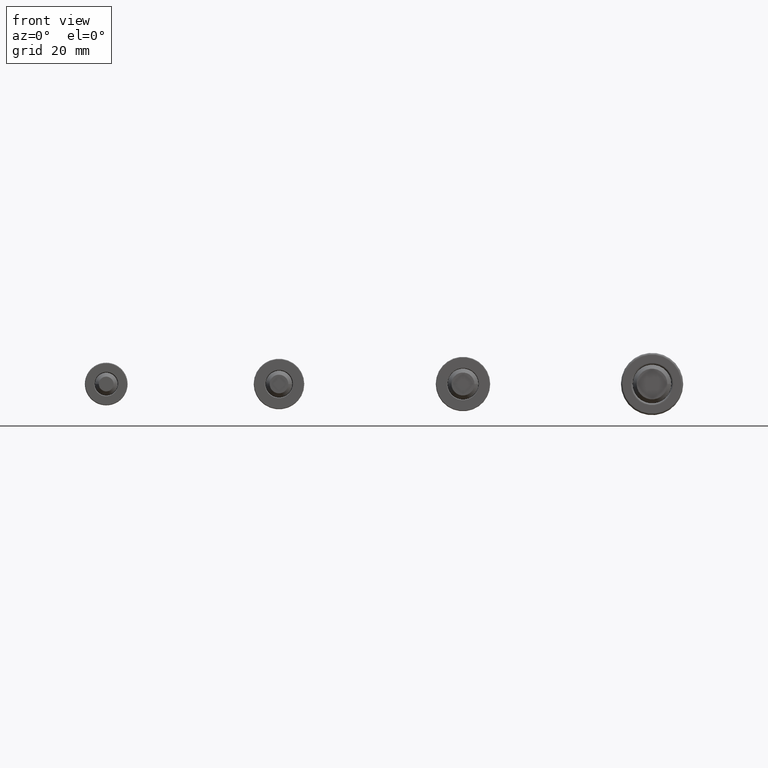
[diagram: clean part render]
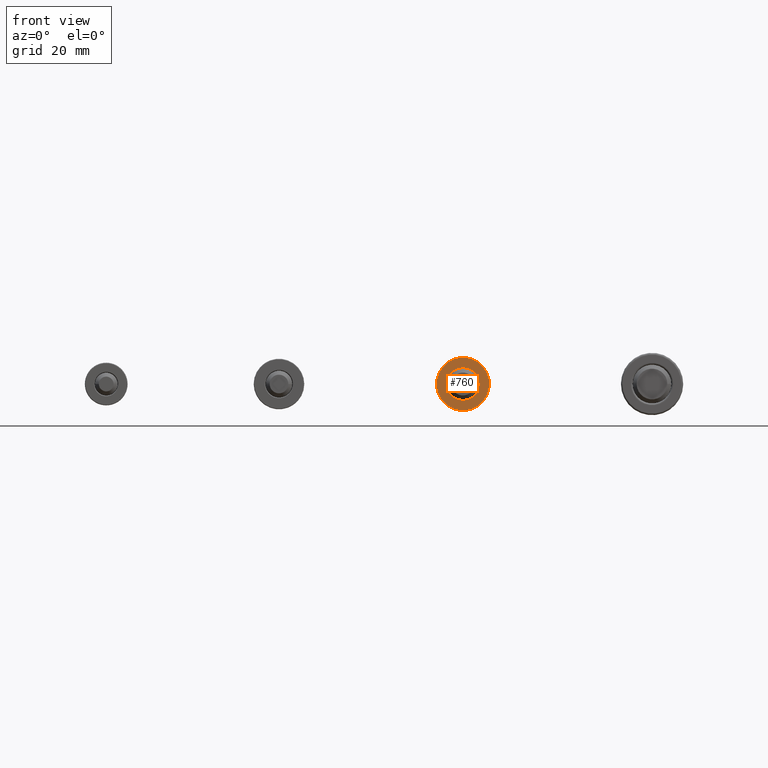
[diagram: same view with one face highlighted and labeled with its STEP entity id]
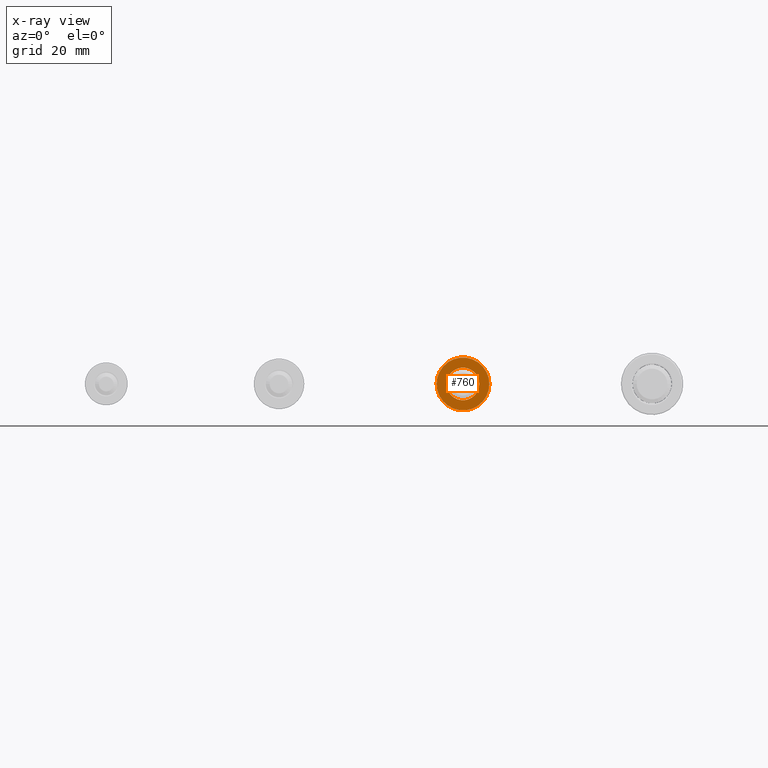
[diagram: x-ray of the same camera — body ghosted, the highlighted face saturated]
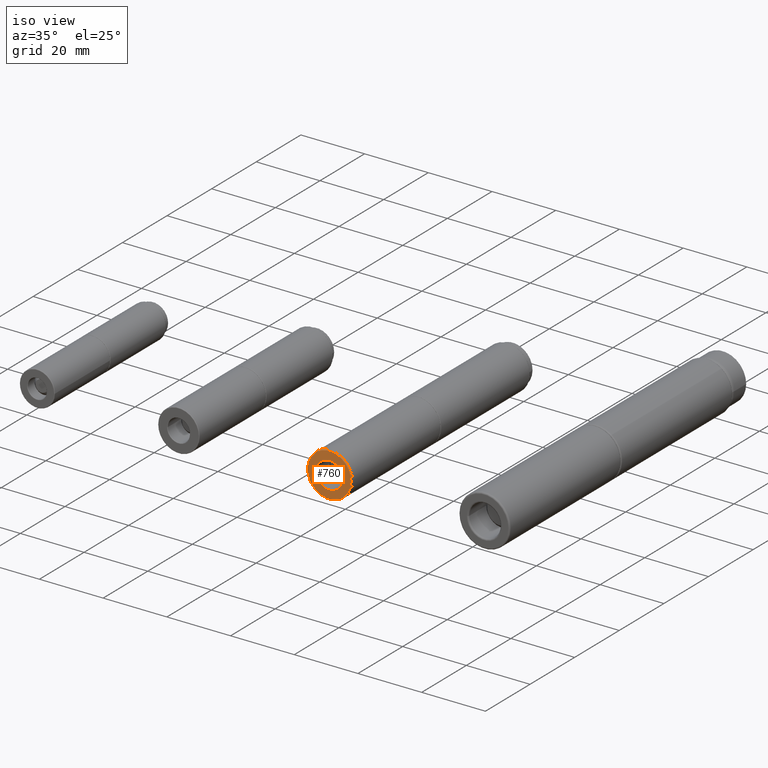
[diagram: same view with one face highlighted and labeled with its STEP entity id]
A machine part, front view. The second image highlights one B-rep face of the part: STEP entity #760.
The next image is the same camera in x-ray: the body ghosted, the highlighted face saturated — about 0% of this face is hidden behind the body in this view.
A second angle (iso view) of the same face is appended — the face is thin or edge-on in the first view.
In plain terms, the highlighted planar face has unit normal (0, 1, -0).
Its self-contained STEP definition (entity closure, byte-faithful):
#126=PLANE('',#898);
#190=FACE_BOUND('',#360,.T.);
#252=FACE_OUTER_BOUND('',#359,.T.);
#359=EDGE_LOOP('',(#659));
#360=EDGE_LOOP('',(#660));
#433=CIRCLE('',#897,6.8);
#434=CIRCLE('',#899,4.2);
#493=VERTEX_POINT('',#1402);
#494=VERTEX_POINT('',#1405);
#553=EDGE_CURVE('',#493,#493,#433,.T.);
#554=EDGE_CURVE('',#494,#494,#434,.T.);
#659=ORIENTED_EDGE('',*,*,#553,.F.);
#660=ORIENTED_EDGE('',*,*,#554,.F.);
#760=ADVANCED_FACE('',(#252,#190),#126,.F.);
#897=AXIS2_PLACEMENT_3D('',#1403,#1164,#1165);
#898=AXIS2_PLACEMENT_3D('',#1404,#1166,#1167);
#899=AXIS2_PLACEMENT_3D('',#1406,#1168,#1169);
#1164=DIRECTION('center_axis',(0.,0.,1.));
#1165=DIRECTION('ref_axis',(-1.,0.,0.));
#1166=DIRECTION('center_axis',(0.,0.,1.));
#1167=DIRECTION('ref_axis',(1.,0.,0.));
#1168=DIRECTION('center_axis',(0.,0.,-1.));
#1169=DIRECTION('ref_axis',(-1.,0.,0.));
#1402=CARTESIAN_POINT('',(6.8,8.327598234202E-16,0.));
#1403=CARTESIAN_POINT('Origin',(0.,0.,0.));
#1404=CARTESIAN_POINT('Origin',(-3.35776545337204E-16,1.32169407693471E-16,
0.));
#1405=CARTESIAN_POINT('',(4.2,-5.14351655641888E-16,0.));
#1406=CARTESIAN_POINT('Origin',(0.,0.,0.));